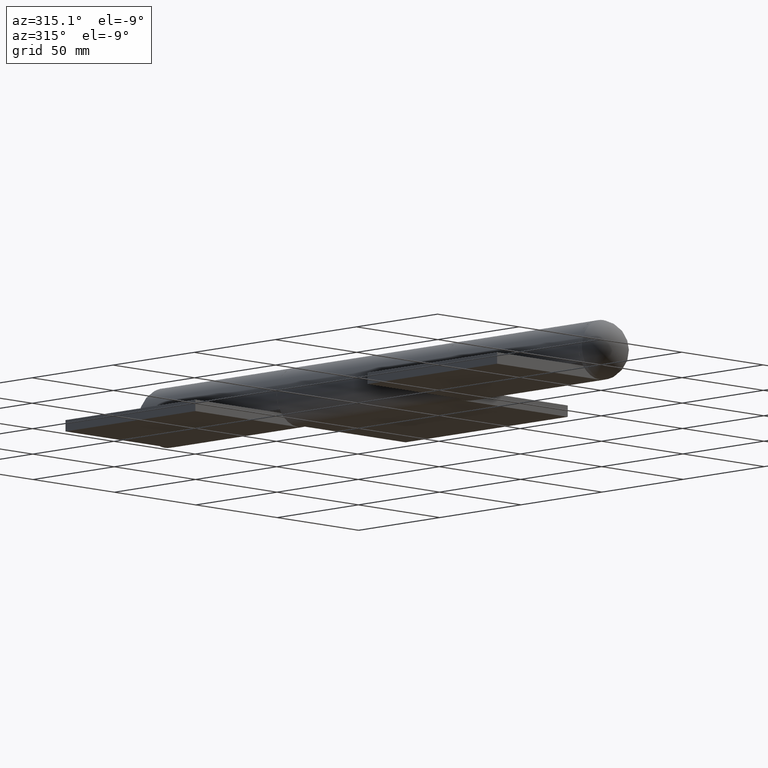
[diagram: clean part render]
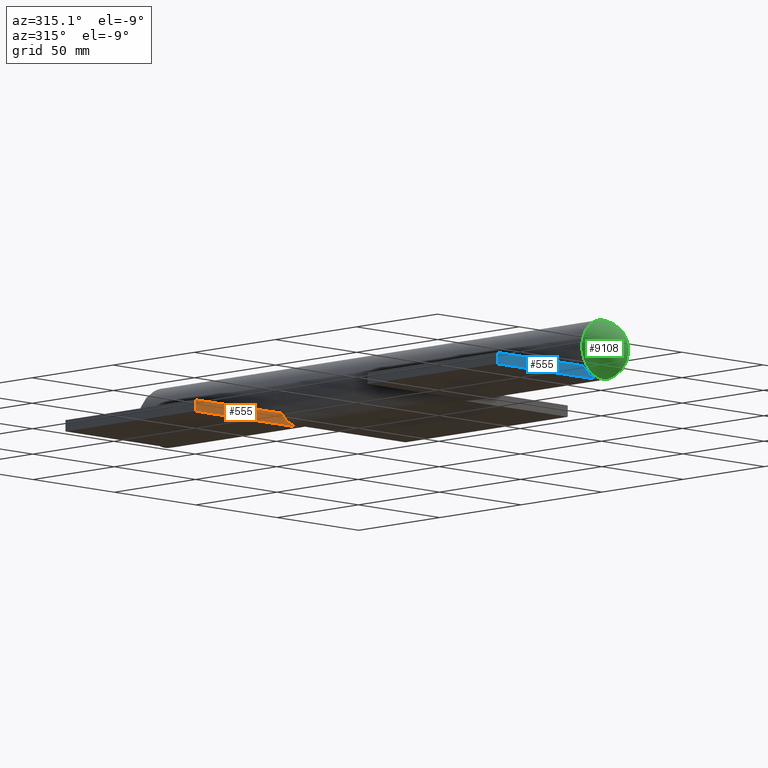
[diagram: same view with three faces highlighted in distinct colors, each labeled with its STEP entity id]
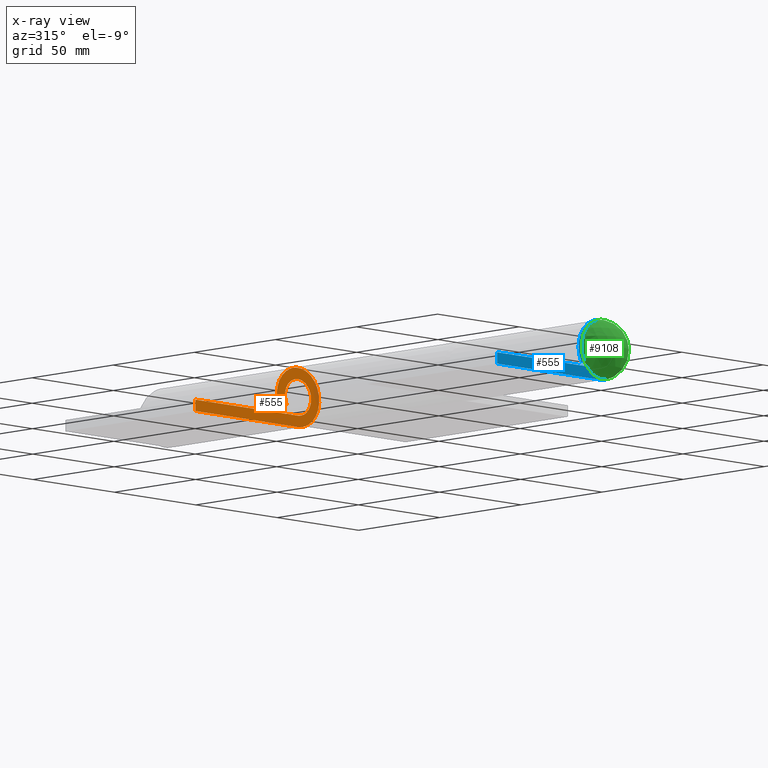
[diagram: x-ray of the same camera — body ghosted, the three highlighted faces saturated]
A machine part, auxiliary view with three faces highlighted in distinct colors.
The next image is the same camera in x-ray (body ghosted, the three faces saturated) — at least one of them is partly hidden behind the body in this view.
Their STEP definitions:

[orange] entity #555 — the highlighted planar face has unit normal (0, -1, 0).
#509 = VECTOR ( 'NONE', #7886, 1000.000000000000000 ) ;
#555 = ADVANCED_FACE ( 'NONE', ( #10997 ), #4849, .T. ) ;
#675 = ORIENTED_EDGE ( 'NONE', *, *, #12918, .F. ) ;
#930 = VECTOR ( 'NONE', #10664, 1000.000000000000000 ) ;
#1223 = CIRCLE ( 'NONE', #11937, 13.05000000000000604 ) ;
#1273 = CARTESIAN_POINT ( 'NONE',  ( -6.550000000000000711, -40.00000000000000000, 11.28716084761796701 ) ) ;
#1304 = CIRCLE ( 'NONE', #11996, 8.050000000000004263 ) ;
#1816 = VERTEX_POINT ( 'NONE', #4668 ) ;
#2355 = ORIENTED_EDGE ( 'NONE', *, *, #4902, .F. ) ;
#2356 = LINE ( 'NONE', #1273, #7383 ) ;
#2371 = EDGE_CURVE ( 'NONE', #8079, #8602, #10765, .T. ) ;
#2581 = VECTOR ( 'NONE', #12172, 1000.000000000000000 ) ;
#2751 = CARTESIAN_POINT ( 'NONE',  ( -13.04999999999999893, -40.00000000000000000, 63.04500000000000171 ) ) ;
#2972 = CARTESIAN_POINT ( 'NONE',  ( -13.04999999999999893, -40.00000000000000000, 63.04500000000000171 ) ) ;
#3792 = DIRECTION ( 'NONE',  ( 0.000000000000000000, 0.000000000000000000, -1.000000000000000000 ) ) ;
#4296 = DIRECTION ( 'NONE',  ( 0.000000000000000000, -1.000000000000000000, 0.000000000000000000 ) ) ;
#4668 = CARTESIAN_POINT ( 'NONE',  ( -4.040421455938690620, -40.00000000000000000, 6.962578147381204730 ) ) ;
#4849 = PLANE ( 'NONE',  #6583 ) ;
#4902 = EDGE_CURVE ( 'NONE', #8602, #1816, #1304, .T. ) ;
#5606 = EDGE_CURVE ( 'NONE', #11537, #8079, #11636, .T. ) ;
#5783 = CARTESIAN_POINT ( 'NONE',  ( 8.673617379884035472E-15, -40.00000000000000000, 0.000000000000000000 ) ) ;
#6027 = ORIENTED_EDGE ( 'NONE', *, *, #5606, .F. ) ;
#6260 = CARTESIAN_POINT ( 'NONE',  ( -8.050000000000000711, -40.00000000000000000, 63.04500000000000171 ) ) ;
#6320 = EDGE_LOOP ( 'NONE', ( #6027, #7236, #675, #6779, #2355, #12164 ) ) ;
#6583 = AXIS2_PLACEMENT_3D ( 'NONE', #9117, #4296, #8243 ) ;
#6714 = DIRECTION ( 'NONE',  ( 0.000000000000000000, 1.000000000000000000, -0.000000000000000000 ) ) ;
#6779 = ORIENTED_EDGE ( 'NONE', *, *, #8939, .F. ) ;
#7236 = ORIENTED_EDGE ( 'NONE', *, *, #10957, .F. ) ;
#7279 = VERTEX_POINT ( 'NONE', #10967 ) ;
#7370 = CARTESIAN_POINT ( 'NONE',  ( -8.050000000000000711, -40.00000000000000000, 0.000000000000000000 ) ) ;
#7383 = VECTOR ( 'NONE', #8256, 1000.000000000000114 ) ;
#7459 = CARTESIAN_POINT ( 'NONE',  ( -13.04999999999999893, -40.00000000000000000, 63.04500000000000171 ) ) ;
#7511 = LINE ( 'NONE', #2751, #930 ) ;
#7886 = DIRECTION ( 'NONE',  ( 1.000000000000000000, 0.000000000000000000, 0.000000000000000000 ) ) ;
#8079 = VERTEX_POINT ( 'NONE', #6260 ) ;
#8243 = DIRECTION ( 'NONE',  ( 0.000000000000000000, -0.000000000000000000, -1.000000000000000000 ) ) ;
#8256 = DIRECTION ( 'NONE',  ( -0.5019157088122614407, -0.000000000000000000, 0.8649165400473535215 ) ) ;
#8267 = CARTESIAN_POINT ( 'NONE',  ( 8.673617379884035472E-15, -40.00000000000000000, 0.000000000000000000 ) ) ;
#8602 = VERTEX_POINT ( 'NONE', #7370 ) ;
#8939 = EDGE_CURVE ( 'NONE', #1816, #11330, #2356, .T. ) ;
#9117 = CARTESIAN_POINT ( 'NONE',  ( 8.673617379884035472E-15, -40.00000000000000000, 0.000000000000000000 ) ) ;
#9196 = DIRECTION ( 'NONE',  ( -0.000000000000000000, -1.000000000000000000, 0.000000000000000000 ) ) ;
#10245 = DIRECTION ( 'NONE',  ( 0.000000000000000000, 0.000000000000000000, -1.000000000000000000 ) ) ;
#10368 = CARTESIAN_POINT ( 'NONE',  ( -8.050000000000000711, -40.00000000000000000, 63.04500000000000171 ) ) ;
#10664 = DIRECTION ( 'NONE',  ( -0.000000000000000000, -0.000000000000000000, 1.000000000000000000 ) ) ;
#10765 = LINE ( 'NONE', #10368, #2581 ) ;
#10957 = EDGE_CURVE ( 'NONE', #7279, #11537, #7511, .T. ) ;
#10967 = CARTESIAN_POINT ( 'NONE',  ( -13.04999999999999716, -40.00000000000000000, 2.397246109330944548E-15 ) ) ;
#10997 = FACE_OUTER_BOUND ( 'NONE', #6320, .T. ) ;
#11330 = VERTEX_POINT ( 'NONE', #11495 ) ;
#11495 = CARTESIAN_POINT ( 'NONE',  ( -6.550000000000000711, -40.00000000000000000, 11.28716084761796701 ) ) ;
#11537 = VERTEX_POINT ( 'NONE', #7459 ) ;
#11636 = LINE ( 'NONE', #2972, #509 ) ;
#11937 = AXIS2_PLACEMENT_3D ( 'NONE', #5783, #6714, #3792 ) ;
#11996 = AXIS2_PLACEMENT_3D ( 'NONE', #8267, #9196, #10245 ) ;
#12164 = ORIENTED_EDGE ( 'NONE', *, *, #2371, .F. ) ;
#12172 = DIRECTION ( 'NONE',  ( 0.000000000000000000, 0.000000000000000000, -1.000000000000000000 ) ) ;
#12918 = EDGE_CURVE ( 'NONE', #11330, #7279, #1223, .T. ) ;

[blue] entity #555 — the highlighted planar face has unit normal (0, -1, 0).
#509 = VECTOR ( 'NONE', #7886, 1000.000000000000000 ) ;
#555 = ADVANCED_FACE ( 'NONE', ( #10997 ), #4849, .T. ) ;
#675 = ORIENTED_EDGE ( 'NONE', *, *, #12918, .F. ) ;
#930 = VECTOR ( 'NONE', #10664, 1000.000000000000000 ) ;
#1223 = CIRCLE ( 'NONE', #11937, 13.05000000000000604 ) ;
#1273 = CARTESIAN_POINT ( 'NONE',  ( -6.550000000000000711, -40.00000000000000000, 11.28716084761796701 ) ) ;
#1304 = CIRCLE ( 'NONE', #11996, 8.050000000000004263 ) ;
#1816 = VERTEX_POINT ( 'NONE', #4668 ) ;
#2355 = ORIENTED_EDGE ( 'NONE', *, *, #4902, .F. ) ;
#2356 = LINE ( 'NONE', #1273, #7383 ) ;
#2371 = EDGE_CURVE ( 'NONE', #8079, #8602, #10765, .T. ) ;
#2581 = VECTOR ( 'NONE', #12172, 1000.000000000000000 ) ;
#2751 = CARTESIAN_POINT ( 'NONE',  ( -13.04999999999999893, -40.00000000000000000, 63.04500000000000171 ) ) ;
#2972 = CARTESIAN_POINT ( 'NONE',  ( -13.04999999999999893, -40.00000000000000000, 63.04500000000000171 ) ) ;
#3792 = DIRECTION ( 'NONE',  ( 0.000000000000000000, 0.000000000000000000, -1.000000000000000000 ) ) ;
#4296 = DIRECTION ( 'NONE',  ( 0.000000000000000000, -1.000000000000000000, 0.000000000000000000 ) ) ;
#4668 = CARTESIAN_POINT ( 'NONE',  ( -4.040421455938690620, -40.00000000000000000, 6.962578147381204730 ) ) ;
#4849 = PLANE ( 'NONE',  #6583 ) ;
#4902 = EDGE_CURVE ( 'NONE', #8602, #1816, #1304, .T. ) ;
#5606 = EDGE_CURVE ( 'NONE', #11537, #8079, #11636, .T. ) ;
#5783 = CARTESIAN_POINT ( 'NONE',  ( 8.673617379884035472E-15, -40.00000000000000000, 0.000000000000000000 ) ) ;
#6027 = ORIENTED_EDGE ( 'NONE', *, *, #5606, .F. ) ;
#6260 = CARTESIAN_POINT ( 'NONE',  ( -8.050000000000000711, -40.00000000000000000, 63.04500000000000171 ) ) ;
#6320 = EDGE_LOOP ( 'NONE', ( #6027, #7236, #675, #6779, #2355, #12164 ) ) ;
#6583 = AXIS2_PLACEMENT_3D ( 'NONE', #9117, #4296, #8243 ) ;
#6714 = DIRECTION ( 'NONE',  ( 0.000000000000000000, 1.000000000000000000, -0.000000000000000000 ) ) ;
#6779 = ORIENTED_EDGE ( 'NONE', *, *, #8939, .F. ) ;
#7236 = ORIENTED_EDGE ( 'NONE', *, *, #10957, .F. ) ;
#7279 = VERTEX_POINT ( 'NONE', #10967 ) ;
#7370 = CARTESIAN_POINT ( 'NONE',  ( -8.050000000000000711, -40.00000000000000000, 0.000000000000000000 ) ) ;
#7383 = VECTOR ( 'NONE', #8256, 1000.000000000000114 ) ;
#7459 = CARTESIAN_POINT ( 'NONE',  ( -13.04999999999999893, -40.00000000000000000, 63.04500000000000171 ) ) ;
#7511 = LINE ( 'NONE', #2751, #930 ) ;
#7886 = DIRECTION ( 'NONE',  ( 1.000000000000000000, 0.000000000000000000, 0.000000000000000000 ) ) ;
#8079 = VERTEX_POINT ( 'NONE', #6260 ) ;
#8243 = DIRECTION ( 'NONE',  ( 0.000000000000000000, -0.000000000000000000, -1.000000000000000000 ) ) ;
#8256 = DIRECTION ( 'NONE',  ( -0.5019157088122614407, -0.000000000000000000, 0.8649165400473535215 ) ) ;
#8267 = CARTESIAN_POINT ( 'NONE',  ( 8.673617379884035472E-15, -40.00000000000000000, 0.000000000000000000 ) ) ;
#8602 = VERTEX_POINT ( 'NONE', #7370 ) ;
#8939 = EDGE_CURVE ( 'NONE', #1816, #11330, #2356, .T. ) ;
#9117 = CARTESIAN_POINT ( 'NONE',  ( 8.673617379884035472E-15, -40.00000000000000000, 0.000000000000000000 ) ) ;
#9196 = DIRECTION ( 'NONE',  ( -0.000000000000000000, -1.000000000000000000, 0.000000000000000000 ) ) ;
#10245 = DIRECTION ( 'NONE',  ( 0.000000000000000000, 0.000000000000000000, -1.000000000000000000 ) ) ;
#10368 = CARTESIAN_POINT ( 'NONE',  ( -8.050000000000000711, -40.00000000000000000, 63.04500000000000171 ) ) ;
#10664 = DIRECTION ( 'NONE',  ( -0.000000000000000000, -0.000000000000000000, 1.000000000000000000 ) ) ;
#10765 = LINE ( 'NONE', #10368, #2581 ) ;
#10957 = EDGE_CURVE ( 'NONE', #7279, #11537, #7511, .T. ) ;
#10967 = CARTESIAN_POINT ( 'NONE',  ( -13.04999999999999716, -40.00000000000000000, 2.397246109330944548E-15 ) ) ;
#10997 = FACE_OUTER_BOUND ( 'NONE', #6320, .T. ) ;
#11330 = VERTEX_POINT ( 'NONE', #11495 ) ;
#11495 = CARTESIAN_POINT ( 'NONE',  ( -6.550000000000000711, -40.00000000000000000, 11.28716084761796701 ) ) ;
#11537 = VERTEX_POINT ( 'NONE', #7459 ) ;
#11636 = LINE ( 'NONE', #2972, #509 ) ;
#11937 = AXIS2_PLACEMENT_3D ( 'NONE', #5783, #6714, #3792 ) ;
#11996 = AXIS2_PLACEMENT_3D ( 'NONE', #8267, #9196, #10245 ) ;
#12164 = ORIENTED_EDGE ( 'NONE', *, *, #2371, .F. ) ;
#12172 = DIRECTION ( 'NONE',  ( 0.000000000000000000, 0.000000000000000000, -1.000000000000000000 ) ) ;
#12918 = EDGE_CURVE ( 'NONE', #11330, #7279, #1223, .T. ) ;

[green] entity #9108 — the highlighted spherical surface has radius 13.2976 mm.
#175 = EDGE_LOOP ( 'NONE', ( #6182 ) ) ;
#882 = CARTESIAN_POINT ( 'NONE',  ( 0.000000000000000000, 2.952380952380949442, 0.000000000000000000 ) ) ;
#1731 = EDGE_CURVE ( 'NONE', #10945, #10945, #7766, .T. ) ;
#1863 = DIRECTION ( 'NONE',  ( 0.000000000000000000, 0.000000000000000000, -1.000000000000000000 ) ) ;
#2942 = DIRECTION ( 'NONE',  ( -0.000000000000000000, -1.000000000000000000, -0.000000000000000000 ) ) ;
#5022 = AXIS2_PLACEMENT_3D ( 'NONE', #8921, #2942, #1863 ) ;
#5991 = AXIS2_PLACEMENT_3D ( 'NONE', #882, #9916, #11042 ) ;
#6182 = ORIENTED_EDGE ( 'NONE', *, *, #1731, .F. ) ;
#7766 = CIRCLE ( 'NONE', #5022, 13.00000000000000355 ) ;
#8921 = CARTESIAN_POINT ( 'NONE',  ( 0.000000000000000000, 5.750000000000005329, 0.000000000000000000 ) ) ;
#9108 = ADVANCED_FACE ( 'NONE', ( #10692 ), #11439, .T. ) ;
#9916 = DIRECTION ( 'NONE',  ( 0.000000000000000000, 0.000000000000000000, 1.000000000000000000 ) ) ;
#10692 = FACE_OUTER_BOUND ( 'NONE', #175, .T. ) ;
#10945 = VERTEX_POINT ( 'NONE', #10972 ) ;
#10972 = CARTESIAN_POINT ( 'NONE',  ( 0.000000000000000000, 5.750000000000005329, -13.00000000000000355 ) ) ;
#11042 = DIRECTION ( 'NONE',  ( 1.000000000000000000, 0.000000000000000000, 0.000000000000000000 ) ) ;
#11439 = SPHERICAL_SURFACE ( 'NONE', #5991, 13.29761904761905100 ) ;